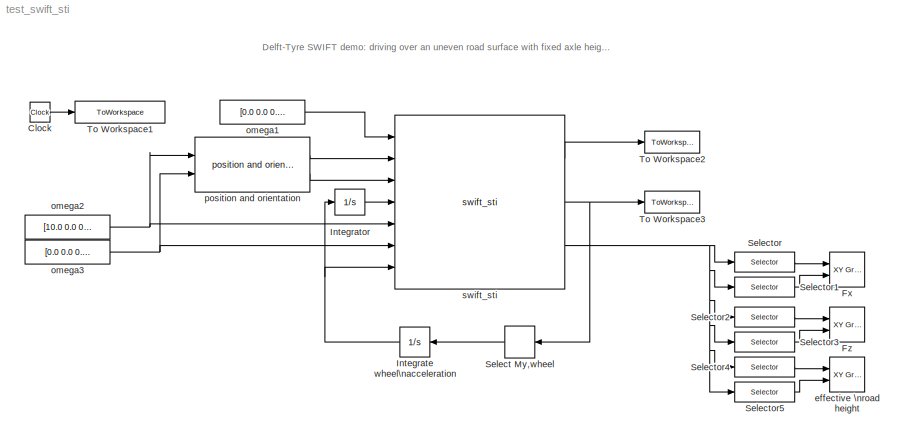
MODEL test_swift_sti
KIND model
CONFIG AbsTol = 1e-4
CONFIG FixedStep = 0.02
CONFIG MaxStep = 0.0005
CONFIG MinStep = auto
CONFIG RelTol = 1e-4
CONFIG Solver = ode45
CONFIG SolverMode = SingleTasking
CONFIG StartTime = 0.0
CONFIG StopTime = 0.4
BLOCK [Clock] Clock
  Decimation = 10
  DisplayTime = off
BLOCK [Reference] Fx  REF=simulink3/Sinks/XY Graph
  Ports = [2]
  SourceBlock = simulink3/Sinks/XY Graph
  SourceType = XY scope.
  st = -1
  xmax = 4
  xmin = 0
  ymax = 4000
  ymin = -4000
BLOCK [Reference] Fz  REF=simulink3/Sinks/XY Graph
  Ports = [2]
  SourceBlock = simulink3/Sinks/XY Graph
  SourceType = XY scope.
  st = -1
  xmax = 4
  xmin = 0
  ymax = 10000
  ymin = 0
BLOCK [Integrator] Integrate wheel\nacceleration
  AbsoluteTolerance = auto
  ExternalReset = none
  InitialCondition = 10/0.3057
  InitialConditionSource = internal
  LimitOutput = off
  LowerSaturationLimit = -inf
  Ports = [1, 1]
  ShowSaturationPort = off
  ShowStatePort = off
  UpperSaturationLimit = inf
BLOCK [Integrator] Integrator
  AbsoluteTolerance = auto
  ExternalReset = none
  InitialCondition = 0
  InitialConditionSource = internal
  LimitOutput = off
  LowerSaturationLimit = -inf
  Ports = [1, 1]
  ShowSaturationPort = off
  ShowStatePort = off
  UpperSaturationLimit = inf
BLOCK [Selector] Select My,wheel
  ColumnSrc = Internal
  Columns = 1
  ElementSrc = Internal
  Elements = 2
  InputPortWidth = 3
  InputType = Vector
  Ports = [1, 1]
  RowSrc = Internal
  Rows = 1
BLOCK [Selector] Selector
  ColumnSrc = Internal
  Columns = 1
  ElementSrc = Internal
  Elements = 36
  InputPortWidth = 40
  InputType = Vector
  Ports = [1, 1]
  RowSrc = Internal
  Rows = 1
BLOCK [Selector] Selector1
  ColumnSrc = Internal
  Columns = 1
  ElementSrc = Internal
  Elements = 4
  InputPortWidth = 40
  InputType = Vector
  Ports = [1, 1]
  RowSrc = Internal
  Rows = 1
BLOCK [Selector] Selector2
  ColumnSrc = Internal
  Columns = 1
  ElementSrc = Internal
  Elements = 36
  InputPortWidth = 40
  InputType = Vector
  Ports = [1, 1]
  RowSrc = Internal
  Rows = 1
BLOCK [Selector] Selector3
  ColumnSrc = Internal
  Columns = 1
  ElementSrc = Internal
  Elements = 6
  InputPortWidth = 40
  InputType = Vector
  Ports = [1, 1]
  RowSrc = Internal
  Rows = 1
BLOCK [Selector] Selector4
  ColumnSrc = Internal
  Columns = 1
  ElementSrc = Internal
  Elements = 36
  InputPortWidth = 40
  InputType = Vector
  Ports = [1, 1]
  RowSrc = Internal
  Rows = 1
BLOCK [Selector] Selector5
  ColumnSrc = Internal
  Columns = 1
  ElementSrc = Internal
  Elements = 37
  InputPortWidth = 40
  InputType = Vector
  Ports = [1, 1]
  RowSrc = Internal
  Rows = 1
BLOCK [ToWorkspace] To Workspace1
  Decimation = 1
  MaxDataPoints = inf
  SampleTime = -1
  SaveFormat = Array
  VariableName = time
BLOCK [ToWorkspace] To Workspace2
  Decimation = 1
  MaxDataPoints = inf
  SampleTime = -1
  SaveFormat = Array
  VariableName = force
BLOCK [ToWorkspace] To Workspace3
  Decimation = 1
  MaxDataPoints = inf
  SampleTime = -1
  SaveFormat = Array
  VariableName = torque
BLOCK [Reference] effective \nroad height  REF=simulink3/Sinks/XY Graph
  Ports = [2]
  SourceBlock = simulink3/Sinks/XY Graph
  SourceType = XY scope.
  st = -1
  xmax = 4
  xmin = 0
  ymax = 0.05
  ymin = -0.05
BLOCK [Constant] omega1
  Value = [0.0 0.0 0.0]
  VectorParams1D = on
BLOCK [Constant] omega2
  Value = [10.0 0.0 0.0]
  VectorParams1D = on
BLOCK [Constant] omega3
  Value = [0.0 0.0 0.0]
  VectorParams1D = on
BLOCK [Reference] position and orientation  REF=dtlib/position and orientation  (lib defined in mdl_8cef2accd2ac)
  Ports = [2, 2]
  SourceBlock = dtlib/position and orientation
  SourceType = Position and Orientation
  init_angle = [0 0 0]
  init_pos = [0 0 0.29]
BLOCK [Reference] swift_sti  REF=dtlib/swift_sti  (lib defined in mdl_8cef2accd2ac)
  Ports = [7, 3]
  SourceBlock = dtlib/swift_sti
  SourceType = SWIFT_STI
  idtyre = 1
  rdfname = 'swt_road.rdf'
  road_popup = Data file (effective inputs)
  tpfname = 'swt_car205_60R15.tir'
  use_mode = 124
LINE Clock:1 -> To Workspace1:1
NET Integrate wheel\nacceleration:1 -> Integrator:1, swift_sti:7
LINE Integrator:1 -> swift_sti:4
LINE Select My,wheel:1 -> Integrate wheel\nacceleration:1
LINE Selector1:1 -> Fx:2
LINE Selector2:1 -> Fz:1
LINE Selector3:1 -> Fz:2
LINE Selector4:1 -> effective \nroad height:1
LINE Selector5:1 -> effective \nroad height:2
LINE Selector:1 -> Fx:1
LINE omega1:1 -> swift_sti:1
NET omega2:1 -> position and orientation:1, swift_sti:5
NET omega3:1 -> position and orientation:2, swift_sti:6
LINE position and orientation:1 -> swift_sti:2
LINE position and orientation:2 -> swift_sti:3
LINE swift_sti:1 -> To Workspace2:1
NET swift_sti:2 -> Select My,wheel:1, To Workspace3:1
NET swift_sti:3 -> Selector1:1, Selector2:1, Selector3:1, Selector4:1, Selector5:1, Selector:1
note: NET lines group one-source signal fan-out (src -> all destinations, sorted); 1:1 wires keep LINE
